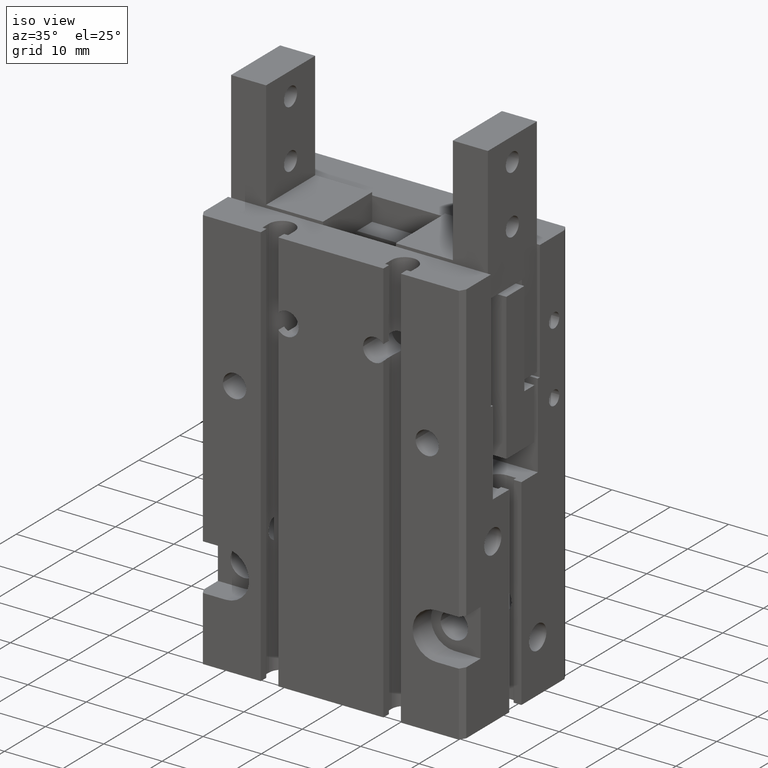
[diagram: clean part render]
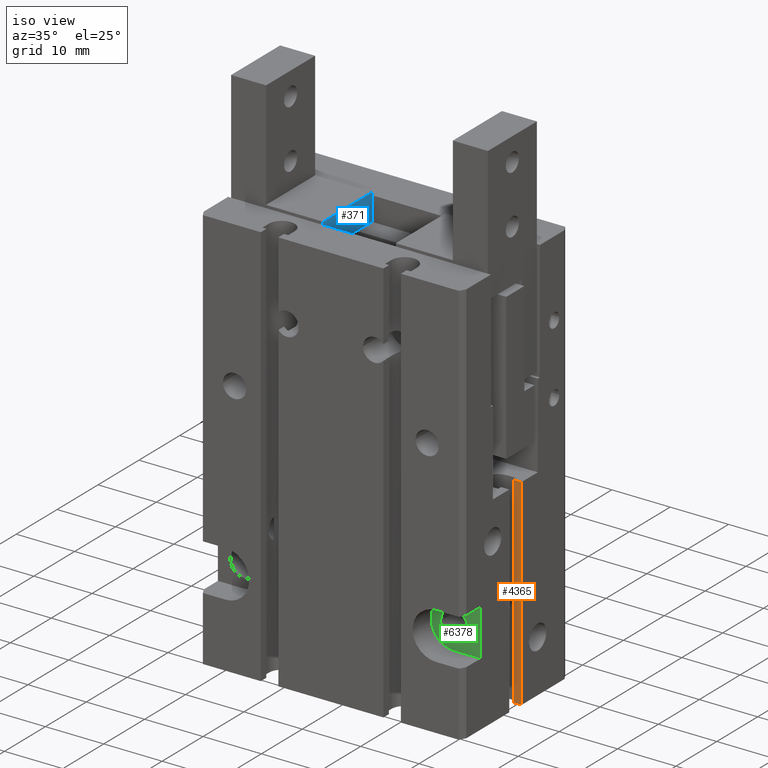
[diagram: same view with three faces highlighted in distinct colors, each labeled with its STEP entity id]
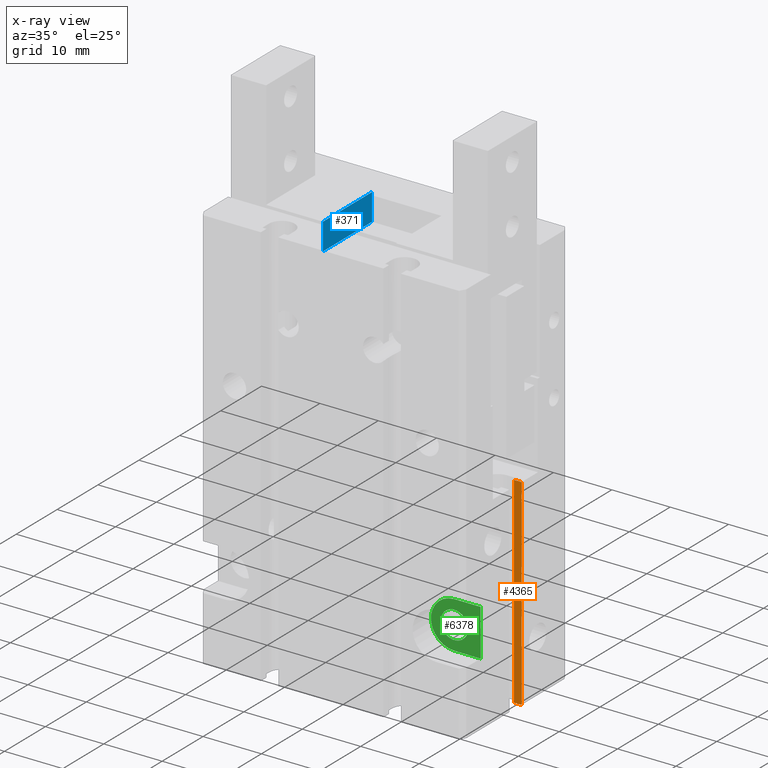
[diagram: x-ray of the same camera — body ghosted, the three highlighted faces saturated]
A machine part, iso view with three faces highlighted in distinct colors.
The next image is the same camera in x-ray (body ghosted, the three faces saturated) — at least one of them is partly hidden behind the body in this view.
Their STEP definitions:

[orange] entity #4365 — the highlighted planar face has unit normal (0, -1, -0).
#2244=CARTESIAN_POINT('',(22.5000130129157,1.50000000000006,34.5));
#2245=VERTEX_POINT('Vertex108',#2244);
#2252=CARTESIAN_POINT('',(22.5000130129157,1.50000000000006,
6.87310724435102E-015));
#2253=VERTEX_POINT('Vertex109',#2252);
#2254=CARTESIAN_POINT('',(22.5000130129157,1.50000000000006,17.25));
#2255=DIRECTION('',(-3.08931624243522E-016,0.,1.));
#2256=VECTOR('',#2255,1.);
#2257=LINE('nurbsCrv142',#2254,#2256);
#2258=EDGE_CURVE('Edge142',#2253,#2245,#2257,.T.);
#4311=CARTESIAN_POINT('',(21.1999999999998,1.50000000000006,
6.58225915179522E-015));
#4312=VERTEX_POINT('Vertex236',#4311);
#4320=CARTESIAN_POINT('',(21.1999999999998,1.50000000000006,34.5));
#4321=VERTEX_POINT('Vertex237',#4320);
#4322=CARTESIAN_POINT('',(21.1999999999998,1.50000000000006,17.25));
#4323=DIRECTION('',(-4.11908832324696E-016,-6.43607550507337E-018,1.));
#4324=VECTOR('',#4323,1.);
#4325=LINE('nurbsCrv322',#4322,#4324);
#4326=EDGE_CURVE('Edge322',#4312,#4321,#4325,.T.);
#4344=CARTESIAN_POINT('',(21.8500065064578,1.50000000000006,
6.72768319807312E-015));
#4345=DIRECTION('',(-1.,0.,-2.23727062472581E-016));
#4346=VECTOR('',#4345,1.);
#4347=LINE('nurbsCrv324',#4344,#4346);
#4348=EDGE_CURVE('Edge324',#2253,#4312,#4347,.T.);
#4349=ORIENTED_EDGE('Edgeuse523',*,*,#4348,.F.);
#4350=ORIENTED_EDGE('Edgeuse524',*,*,#2258,.T.);
#4351=CARTESIAN_POINT('',(21.8500065064578,1.50000000000006,34.5));
#4352=DIRECTION('',(1.,1.70801832534732E-016,0.));
#4353=VECTOR('',#4352,1.);
#4354=LINE('nurbsCrv325',#4351,#4353);
#4355=EDGE_CURVE('Edge325',#4321,#2245,#4354,.T.);
#4356=ORIENTED_EDGE('Edgeuse525',*,*,#4355,.F.);
#4357=ORIENTED_EDGE('Edgeuse526',*,*,#4326,.F.);
#4358=EDGE_LOOP('',(#4349,#4350,#4356,#4357));
#4359=FACE_OUTER_BOUND('',#4358,.T.);
#4360=CARTESIAN_POINT('',(21.8500065064578,1.50000000000006,17.25));
#4361=DIRECTION('',(1.5527439321339E-016,-1.,-1.45361122723758E-032));
#4362=DIRECTION('',(-9.36156437101581E-017,0.,-1.));
#4363=AXIS2_PLACEMENT_3D('',#4360,#4361,#4362);
#4364=PLANE('nurbsSrf108',#4363);
#4365=ADVANCED_FACE('Face108',(#4359),#4364,.T.);

[blue] entity #371 — the highlighted planar face has unit normal (1, -0, 0).
#222=CARTESIAN_POINT('',(-6.2449149870843,6.00001301291574,70.));
#223=VERTEX_POINT('Vertex14',#222);
#230=CARTESIAN_POINT('',(-6.2449149870843,6.00001301291574,65.4));
#231=VERTEX_POINT('Vertex15',#230);
#232=CARTESIAN_POINT('',(-6.2449149870843,6.00001301291574,67.7));
#233=DIRECTION('',(-1.93082265152202E-016,1.93082265152202E-016,1.));
#234=VECTOR('',#233,1.);
#235=LINE('nurbsCrv15',#232,#234);
#236=EDGE_CURVE('Edge15',#231,#223,#235,.T.);
#260=CARTESIAN_POINT('',(-6.24491498708433,-2.29998698708426,65.4));
#261=VERTEX_POINT('Vertex16',#260);
#270=CARTESIAN_POINT('',(-6.24491498708431,1.85001301291574,65.4));
#271=DIRECTION('',(3.21028344469925E-015,1.,0.));
#272=VECTOR('',#271,1.);
#273=LINE('nurbsCrv19',#270,#272);
#274=EDGE_CURVE('Edge19',#261,#231,#273,.T.);
#325=CARTESIAN_POINT('',(-6.24491498708434,-5.99998698708427,65.4));
#326=VERTEX_POINT('Vertex20',#325);
#327=CARTESIAN_POINT('',(-6.24491498708433,-4.14998698708426,65.4));
#328=DIRECTION('',(3.12062688002746E-015,1.,0.));
#329=VECTOR('',#328,1.);
#330=LINE('nurbsCrv24',#327,#329);
#331=EDGE_CURVE('Edge24',#326,#261,#330,.T.);
#347=CARTESIAN_POINT('',(-6.24491498708434,-5.99998698708427,70.));
#348=VERTEX_POINT('Vertex21',#347);
#349=CARTESIAN_POINT('',(-6.24491498708432,1.30129157378533E-005,70.));
#350=DIRECTION('',(3.18263933725878E-015,1.,0.));
#351=VECTOR('',#350,1.);
#352=LINE('nurbsCrv26',#349,#351);
#353=EDGE_CURVE('Edge26',#348,#223,#352,.T.);
#354=ORIENTED_EDGE('Edgeuse37',*,*,#353,.F.);
#355=CARTESIAN_POINT('',(-6.24491498708434,-5.99998698708427,67.7));
#356=DIRECTION('',(-1.93082265152202E-016,0.,1.));
#357=VECTOR('',#356,1.);
#358=LINE('nurbsCrv27',#355,#357);
#359=EDGE_CURVE('Edge27',#326,#348,#358,.T.);
#360=ORIENTED_EDGE('Edgeuse38',*,*,#359,.F.);
#361=ORIENTED_EDGE('Edgeuse39',*,*,#331,.T.);
#362=ORIENTED_EDGE('Edgeuse40',*,*,#274,.T.);
#363=ORIENTED_EDGE('Edgeuse41',*,*,#236,.T.);
#364=EDGE_LOOP('',(#354,#360,#361,#362,#363));
#365=FACE_OUTER_BOUND('',#364,.T.);
#366=CARTESIAN_POINT('',(-6.24491498708432,1.30129157382974E-005,67.7));
#367=DIRECTION('',(1.,-3.0951672201671E-015,3.51058663913101E-016));
#368=DIRECTION('',(-3.0951672201671E-015,-1.,3.22973970800045E-015));
#369=AXIS2_PLACEMENT_3D('',#366,#367,#368);
#370=PLANE('nurbsSrf8',#369);
#371=ADVANCED_FACE('Face8',(#365),#370,.T.);

[green] entity #6378 — the highlighted planar face has unit normal (-0, -1, -0).
#4815=CARTESIAN_POINT('',(22.5000130129156,-8.49998698708433,19.));
#4816=VERTEX_POINT('Vertex252',#4815);
#4823=CARTESIAN_POINT('',(22.5000130129156,-8.49998698708433,11.));
#4824=VERTEX_POINT('Vertex253',#4823);
#4825=CARTESIAN_POINT('',(22.5000130129156,-8.49998698708433,15.));
#4826=DIRECTION('',(1.77635683940025E-015,2.22044604925031E-016,-1.));
#4827=VECTOR('',#4826,1.);
#4828=LINE('nurbsCrv347',#4825,#4827);
#4829=EDGE_CURVE('Edge347',#4816,#4824,#4828,.T.);
#5111=CARTESIAN_POINT('',(18.0000130129157,-8.49998698708431,19.));
#5112=VERTEX_POINT('Vertex268',#5111);
#5119=CARTESIAN_POINT('',(20.2500130129156,-8.49998698708432,19.));
#5120=DIRECTION('',(1.,-3.15796771448936E-015,0.));
#5121=VECTOR('',#5120,1.);
#5122=LINE('nurbsCrv372',#5119,#5121);
#5123=EDGE_CURVE('Edge372',#5112,#4816,#5122,.T.);
#6274=CARTESIAN_POINT('',(18.0000130129157,-8.49998698708431,11.));
#6275=VERTEX_POINT('Vertex299',#6274);
#6282=CARTESIAN_POINT('',(18.0000130129157,-8.49998698708431,15.));
#6283=DIRECTION('',(-3.55271367880049E-015,-1.,-3.15544362088404E-030));
#6284=DIRECTION('',(1.77635683940025E-015,0.,1.));
#6285=AXIS2_PLACEMENT_3D('',#6282,#6283,#6284);
#6286=CIRCLE('nurbsCrv423',#6285,4.);
#6287=EDGE_CURVE('Edge423',#5112,#6275,#6286,.T.);
#6299=CARTESIAN_POINT('',(20.2500130129157,-8.49998698708432,11.));
#6300=DIRECTION('',(-1.,3.15796771448935E-015,7.89491928622338E-016));
#6301=VECTOR('',#6300,1.);
#6302=LINE('nurbsCrv424',#6299,#6301);
#6303=EDGE_CURVE('Edge424',#4824,#6275,#6302,.T.);
#6347=ORIENTED_EDGE('Edgeuse827',*,*,#6287,.T.);
#6348=ORIENTED_EDGE('Edgeuse828',*,*,#6303,.F.);
#6349=ORIENTED_EDGE('Edgeuse829',*,*,#4829,.F.);
#6350=ORIENTED_EDGE('Edgeuse830',*,*,#5123,.F.);
#6351=EDGE_LOOP('',(#6347,#6348,#6349,#6350));
#6352=FACE_OUTER_BOUND('',#6351,.T.);
#6353=CARTESIAN_POINT('',(20.3500130129157,-8.49998698708432,15.));
#6354=VERTEX_POINT('Vertex301',#6353);
#6355=CARTESIAN_POINT('',(15.6500130129157,-8.4999869870843,15.));
#6356=VERTEX_POINT('Vertex379',#6355);
#6357=CARTESIAN_POINT('',(18.0000130129157,-8.49998698708431,15.));
#6358=DIRECTION('',(3.77948263702181E-015,1.,-1.14275912028395E-029));
#6359=DIRECTION('',(1.,-3.77948263702181E-015,-3.77948263702181E-015));
#6360=AXIS2_PLACEMENT_3D('',#6357,#6358,#6359);
#6361=CIRCLE('nurbsCrv1786',#6360,2.35);
#6362=EDGE_CURVE('Edge605',#6354,#6356,#6361,.T.);
#6363=ORIENTED_EDGE('Edgeuse1211',*,*,#6362,.T.);
#6364=CARTESIAN_POINT('',(18.0000130129157,-8.49998698708431,15.));
#6365=DIRECTION('',(3.77948263702181E-015,1.,-8.57069340212961E-030));
#6366=DIRECTION('',(-1.,3.77948263702182E-015,4.53537916442618E-015));
#6367=AXIS2_PLACEMENT_3D('',#6364,#6365,#6366);
#6368=CIRCLE('nurbsCrv1787',#6367,2.35);
#6369=EDGE_CURVE('Edge606',#6356,#6354,#6368,.T.);
#6370=ORIENTED_EDGE('Edgeuse1213',*,*,#6369,.T.);
#6371=EDGE_LOOP('',(#6363,#6370));
#6372=FACE_BOUND('',#6371,.T.);
#6373=CARTESIAN_POINT('',(18.2500130129156,-8.49998698708431,15.));
#6374=DIRECTION('',(-3.03975501929454E-015,-1.,-9.20401639538365E-030));
#6375=DIRECTION('',(1.,-3.03975501929454E-015,3.03975501929454E-015));
#6376=AXIS2_PLACEMENT_3D('',#6373,#6374,#6375);
#6377=PLANE('nurbsSrf159',#6376);
#6378=ADVANCED_FACE('Face159',(#6352,#6372),#6377,.T.);